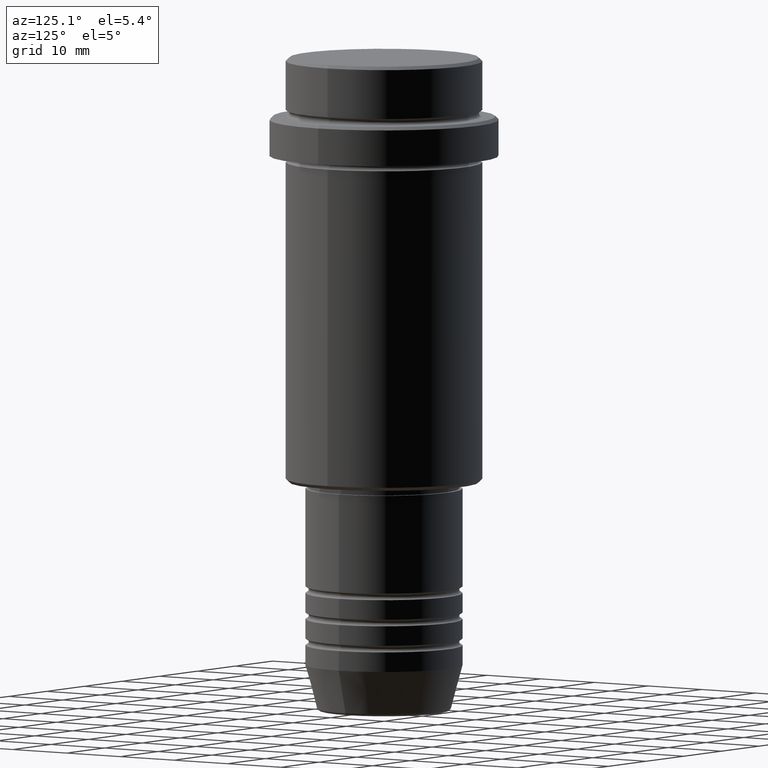
[diagram: clean part render]
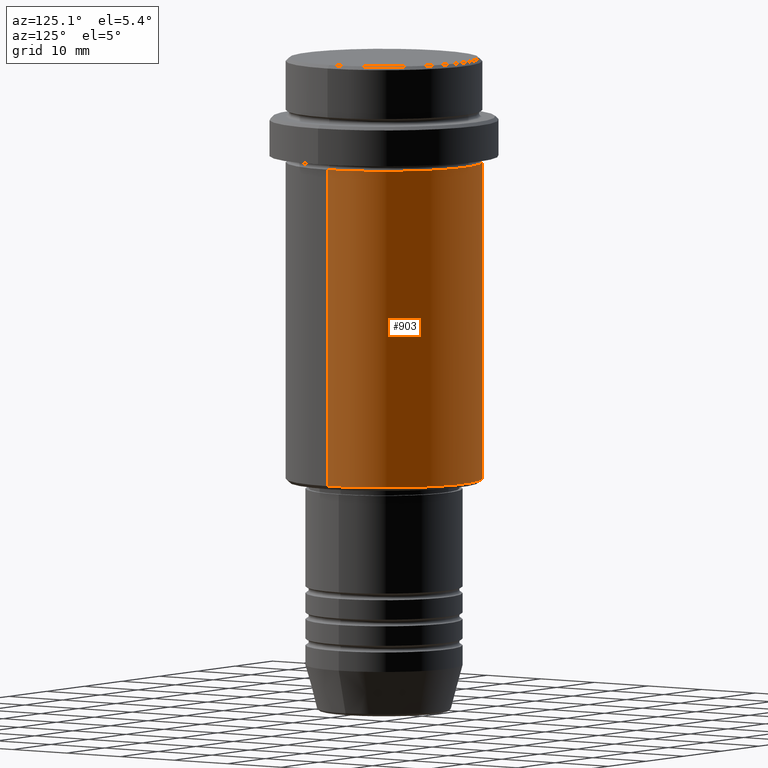
[diagram: same view with one face highlighted and labeled with its STEP entity id]
A machine part, auxiliary view. The second image highlights one B-rep face of the part: STEP entity #903.
In plain terms, the highlighted cylindrical surface (partial cylindrical patch) has radius 15 mm, axis along (-0, -0, 1).
Its self-contained STEP definition (entity closure, byte-faithful):
#23 = CYLINDRICAL_SURFACE ( 'NONE', #1246, 15.00000000000000000 ) ;
#43 = EDGE_CURVE ( 'NONE', #726, #309, #533, .T. ) ;
#48 = AXIS2_PLACEMENT_3D ( 'NONE', #555, #225, #1108 ) ;
#87 = DIRECTION ( 'NONE',  ( 1.000000000000000000, 0.000000000000000000, 0.000000000000000000 ) ) ;
#110 = CARTESIAN_POINT ( 'NONE',  ( -15.00000000000000000, 1.836970198721029589E-15, 0.000000000000000000 ) ) ;
#160 = CIRCLE ( 'NONE', #560, 15.00000000000000178 ) ;
#173 = EDGE_CURVE ( 'NONE', #726, #1170, #1257, .T. ) ;
#207 = EDGE_LOOP ( 'NONE', ( #788, #541, #1272, #659 ) ) ;
#225 = DIRECTION ( 'NONE',  ( -0.000000000000000000, -0.000000000000000000, 1.000000000000000000 ) ) ;
#296 = EDGE_CURVE ( 'NONE', #1170, #1395, #160, .T. ) ;
#309 = VERTEX_POINT ( 'NONE', #1382 ) ;
#348 = DIRECTION ( 'NONE',  ( -0.000000000000000000, -0.000000000000000000, 1.000000000000000000 ) ) ;
#369 = CARTESIAN_POINT ( 'NONE',  ( 15.00000000000000000, 0.000000000000000000, 0.000000000000000000 ) ) ;
#426 = CARTESIAN_POINT ( 'NONE',  ( 15.00000000000000000, 0.000000000000000000, -64.49999999999998579 ) ) ;
#477 = CARTESIAN_POINT ( 'NONE',  ( 0.000000000000000000, 0.000000000000000000, 0.000000000000000000 ) ) ;
#517 = CARTESIAN_POINT ( 'NONE',  ( 0.000000000000000000, 0.000000000000000000, -16.00000000000000000 ) ) ;
#533 = CIRCLE ( 'NONE', #48, 15.00000000000000000 ) ;
#541 = ORIENTED_EDGE ( 'NONE', *, *, #1304, .T. ) ;
#555 = CARTESIAN_POINT ( 'NONE',  ( 0.000000000000000000, 0.000000000000000000, -64.49999999999998579 ) ) ;
#560 = AXIS2_PLACEMENT_3D ( 'NONE', #517, #1271, #87 ) ;
#605 = VECTOR ( 'NONE', #704, 1000.000000000000000 ) ;
#659 = ORIENTED_EDGE ( 'NONE', *, *, #173, .F. ) ;
#704 = DIRECTION ( 'NONE',  ( -0.000000000000000000, -0.000000000000000000, 1.000000000000000000 ) ) ;
#726 = VERTEX_POINT ( 'NONE', #426 ) ;
#751 = CARTESIAN_POINT ( 'NONE',  ( 15.00000000000000178, 0.000000000000000000, -16.00000000000000000 ) ) ;
#788 = ORIENTED_EDGE ( 'NONE', *, *, #43, .T. ) ;
#887 = LINE ( 'NONE', #110, #1408 ) ;
#903 = ADVANCED_FACE ( 'NONE', ( #1236 ), #23, .T. ) ;
#923 = DIRECTION ( 'NONE',  ( -0.000000000000000000, -0.000000000000000000, 1.000000000000000000 ) ) ;
#1108 = DIRECTION ( 'NONE',  ( -1.000000000000000000, 0.000000000000000000, 0.000000000000000000 ) ) ;
#1124 = CARTESIAN_POINT ( 'NONE',  ( -15.00000000000000355, 1.836970198721029983E-15, -16.00000000000000000 ) ) ;
#1170 = VERTEX_POINT ( 'NONE', #751 ) ;
#1236 = FACE_OUTER_BOUND ( 'NONE', #207, .T. ) ;
#1246 = AXIS2_PLACEMENT_3D ( 'NONE', #477, #923, #1327 ) ;
#1257 = LINE ( 'NONE', #369, #605 ) ;
#1271 = DIRECTION ( 'NONE',  ( -0.000000000000000000, -0.000000000000000000, 1.000000000000000000 ) ) ;
#1272 = ORIENTED_EDGE ( 'NONE', *, *, #296, .F. ) ;
#1304 = EDGE_CURVE ( 'NONE', #309, #1395, #887, .T. ) ;
#1327 = DIRECTION ( 'NONE',  ( 1.000000000000000000, 0.000000000000000000, 0.000000000000000000 ) ) ;
#1382 = CARTESIAN_POINT ( 'NONE',  ( -15.00000000000000000, 1.836970198721029589E-15, -64.49999999999998579 ) ) ;
#1395 = VERTEX_POINT ( 'NONE', #1124 ) ;
#1408 = VECTOR ( 'NONE', #348, 1000.000000000000000 ) ;